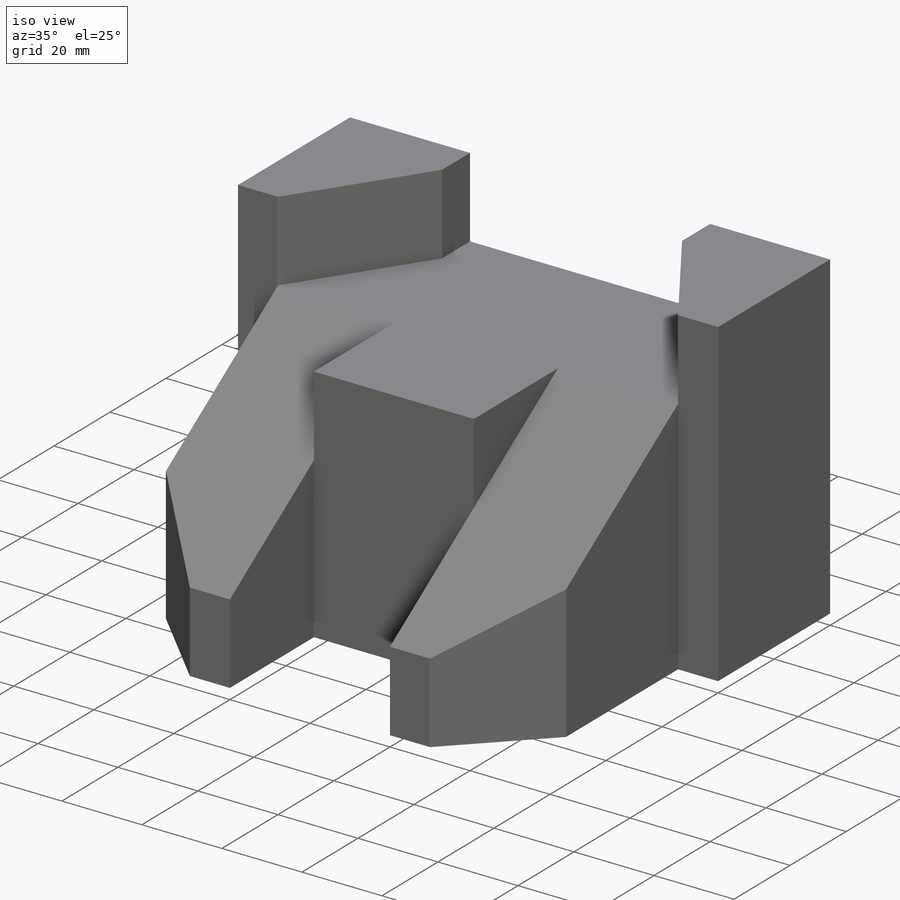
[diagram: iso view]
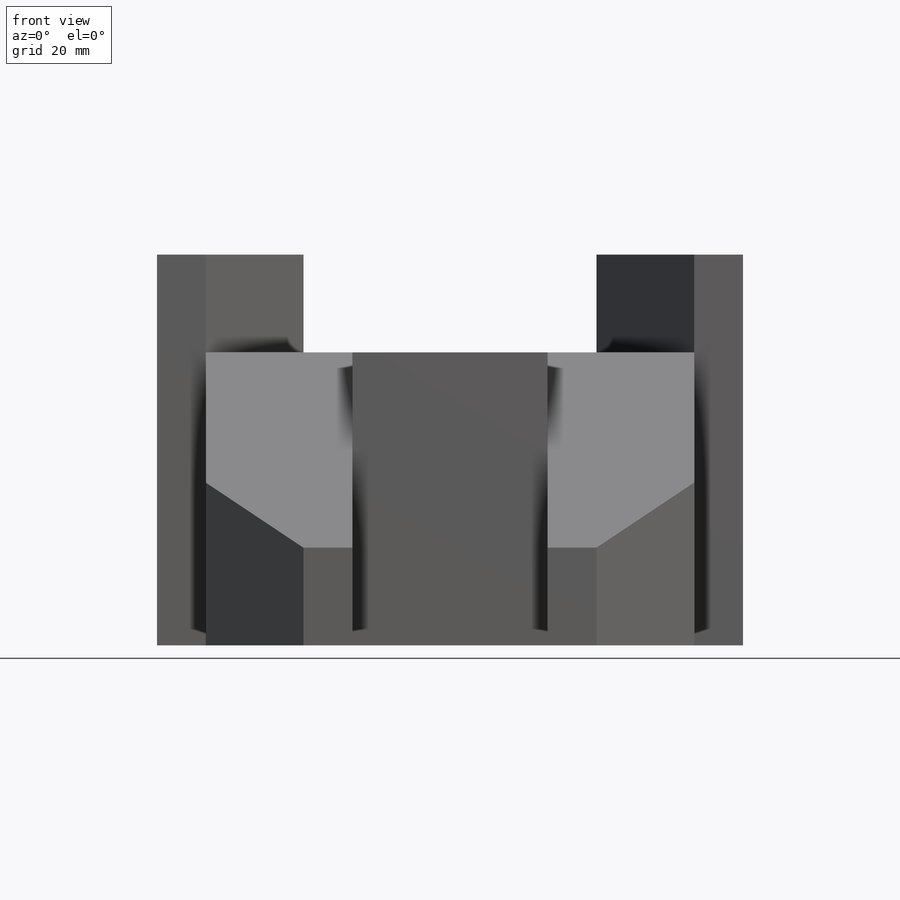
[diagram: front view]
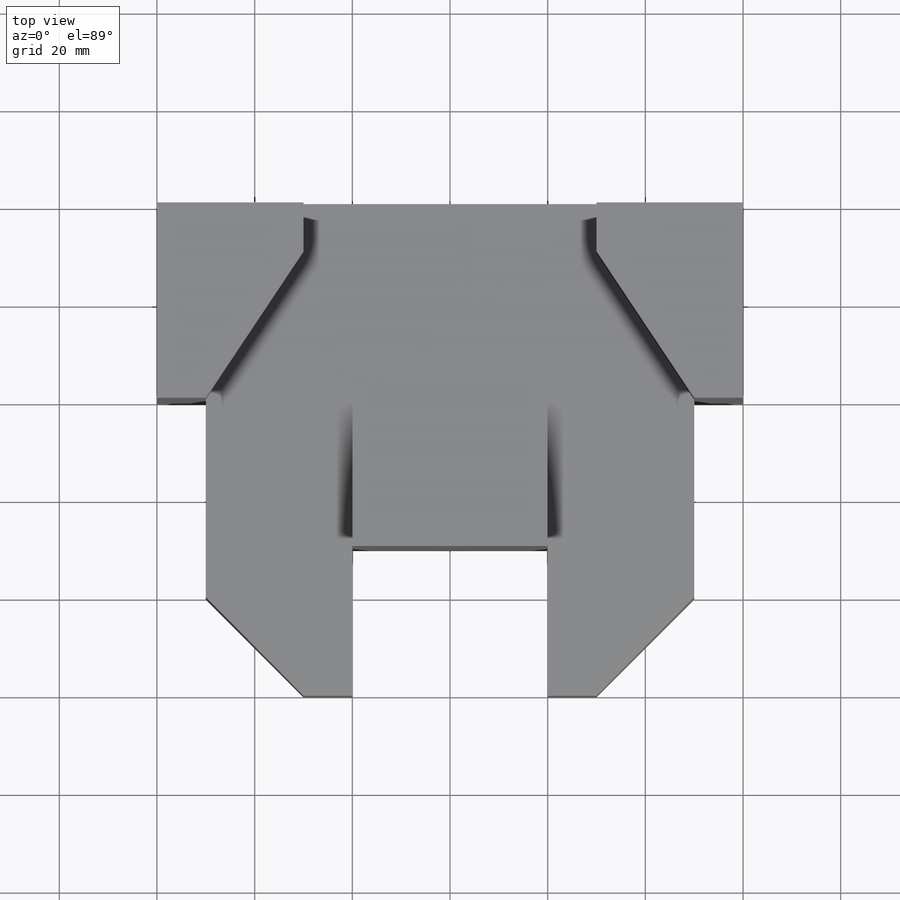
[diagram: top view]
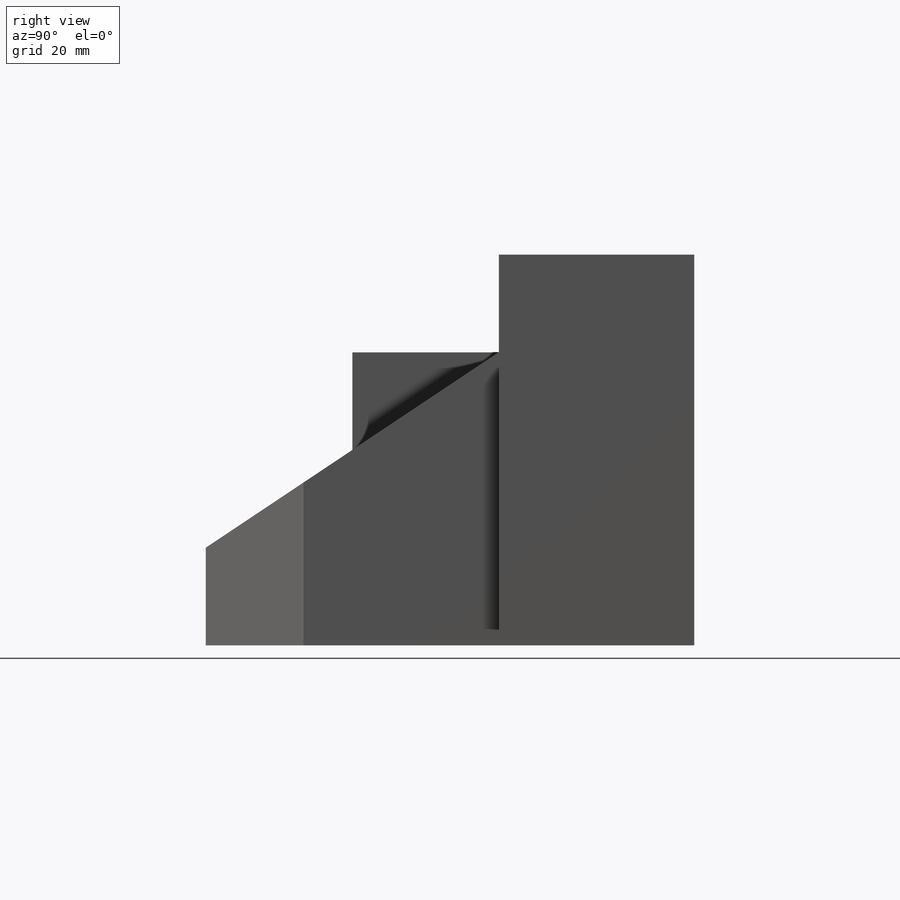
[diagram: right view]
SOLIDWORKS PART (.sldprt)
format: sldprt  version: not decoded by parser v0  size: 306,176 bytes
history: native  units: mm
features: sketch x14, cut_extrude x9, plane x2, material x1, extrude x1 (+13 scaffold rows collapsed)
feature tree (40):
  scaffold x13  (default folders/planes/origin — collapsed)
  material  "Material <not specified>"
  sketch  "Sketch1"  dims[D1=120.0mm D2=100.0mm]
  extrude  "Boss-Extrude1"  Depth=80mm
  sketch  "Sketch2"  dims[D1=40.0mm D2=30.0mm D3=40.0mm]
  cut_extrude  "Cut-Extrude1"  Depth=80mm
  sketch  "Sketch3"  dims[D1=10.0mm D2=40.0mm D3=60.0mm D4=20.0mm D5=20.0mm D6=10.0mm D7=40.0mm D8=20.0mm D9=20.0mm D10=10.0mm]
  cut_extrude  "Cut-Extrude2"  Depth=80mm
  sketch  "Sketch4"  dims[D1=30.0mm D2=30.0mm D3=10.0mm D4=10.0mm D5=29.999mm D6=29.999mm D7=19.999mm D8=30.0mm D9=30.0mm]
  cut_extrude  "Cut-Extrude6"  Depth=20mm
  sketch  "Sketch5"
  cut_extrude  "Cut-Extrude7"  Depth=68mm
  sketch  "Sketch6"
  cut_extrude  "Cut-Extrude8"  Depth=68mm
  sketch  "Sketch7"
  cut_extrude  "Cut-Extrude9"  Depth=68mm
  sketch  "Sketch8"  dims[D1=20.0mm]
  sketch  "Sketch9"  dims[D1=30.0mm D2=30.0mm]
  plane  "Plane1"
  sketch  "Sketch10"
  cut_extrude  "Cut-Extrude10"  Depth=68mm
  sketch  "Sketch11"  dims[D1=30.0mm D2=30.0mm]
  sketch  "Sketch12"  dims[D1=20.0mm]
  plane  "Plane2"
  sketch  "Sketch13"
  cut_extrude  "Cut-Extrude11"  Depth=68mm
  sketch  "Sketch14"
  cut_extrude  "Cut-Extrude12"  Depth=68mm
decode coverage: 18 of 24 modeling features carry decoded parameters
note: suppression state not decoded; provenance and decode notes live in map.json
